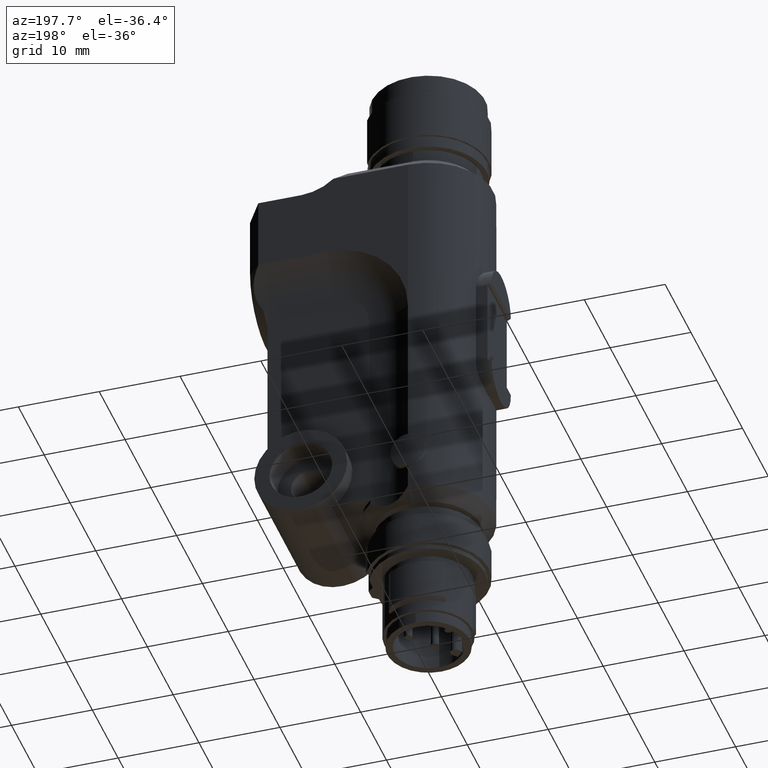
[diagram: clean part render]
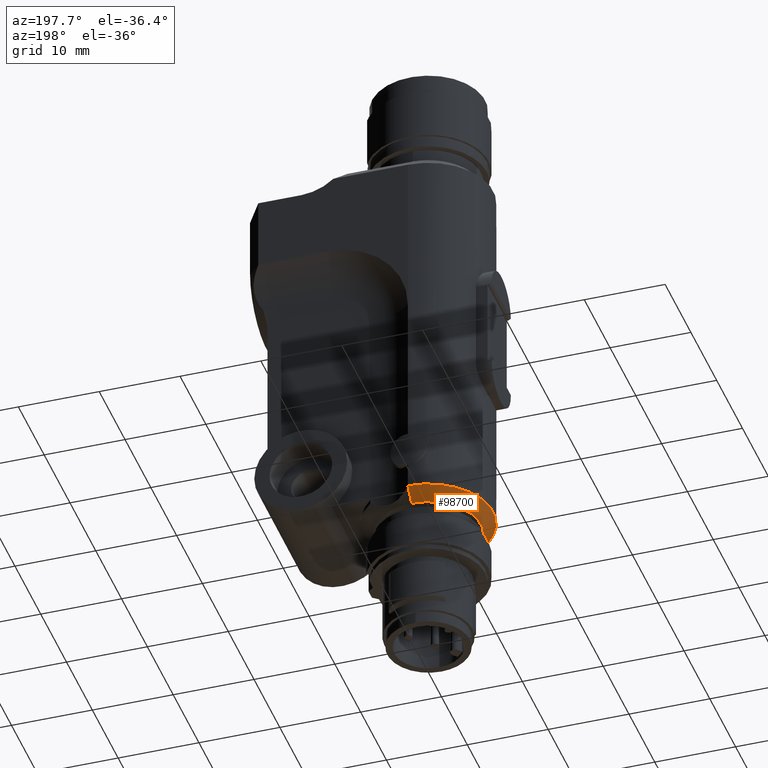
[diagram: same view with one face highlighted and labeled with its STEP entity id]
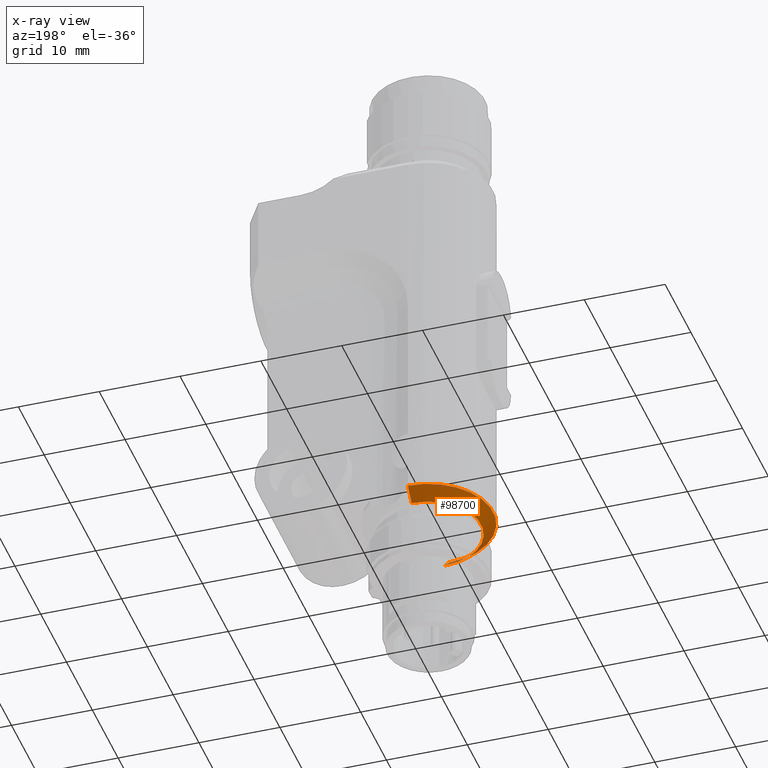
[diagram: x-ray of the same camera — body ghosted, the highlighted face saturated]
A machine part, auxiliary view. The second image highlights one B-rep face of the part: STEP entity #98700.
The next image is the same camera in x-ray: the body ghosted, the highlighted face saturated — about 3% of this face is hidden behind the body in this view.
In plain terms, the highlighted conical surface has half-angle 45 deg.
Its self-contained STEP definition (entity closure, byte-faithful):
#7100=CARTESIAN_POINT('',(8.,7.105427357601E-15,1.5));
#7110=VERTEX_POINT('',#7100);
#7140=CARTESIAN_POINT('',(7.61693287089118E-16,7.105427357601E-15,1.5));
#7150=DIRECTION('',(2.52970265222012E-16,6.19598451167187E-32,1.));
#7160=DIRECTION('',(1.,0.,-2.52970265222012E-16));
#7170=AXIS2_PLACEMENT_3D('',#7140,#7150,#7160);
#7180=CIRCLE('',#7170,8.);
#7190=CARTESIAN_POINT('',(-8.,8.08514479691888E-15,1.5));
#7200=VERTEX_POINT('',#7190);
#7210=EDGE_CURVE('',#7200,#7110,#7180,.T.);
#33750=CARTESIAN_POINT('',(3.822378892561E-16,7.105427357601E-15,
-5.0068352689673E-32));
#33760=DIRECTION('',(2.52970265222012E-16,6.19598451167187E-32,1.));
#33770=DIRECTION('',(1.,0.,-2.52970265222012E-16));
#33780=AXIS2_PLACEMENT_3D('',#33750,#33760,#33770);
#33790=CIRCLE('',#33780,6.5);
#33800=CARTESIAN_POINT('',(6.50000000000001,7.105427357601E-15,0.));
#33810=VERTEX_POINT('',#33800);
#33820=CARTESIAN_POINT('',(-6.50000000000001,7.90144777704678E-15,
1.55431223447522E-15));
#33830=VERTEX_POINT('',#33820);
#33860=EDGE_CURVE('',#33830,#33810,#33790,.T.);
#34130=CARTESIAN_POINT('',(-8.,8.08514479691888E-15,1.5));
#34140=DIRECTION('',(-0.707106781186547,8.65956056235493E-17,
0.707106781186548));
#34150=VECTOR('',#34140,11.3137084989848);
#34160=LINE('',#34130,#34150);
#34170=EDGE_CURVE('',#33830,#7200,#34160,.T.);
#34200=CARTESIAN_POINT('',(8.,7.105427357601E-15,1.5));
#34210=DIRECTION('',(0.707106781186547,0.,0.707106781186548));
#34220=VECTOR('',#34210,11.3137084989848);
#34230=LINE('',#34200,#34220);
#34240=EDGE_CURVE('',#33810,#7110,#34230,.T.);
#98590=CARTESIAN_POINT('',(7.61693287089118E-16,7.105427357601E-15,1.5))
;
#98600=DIRECTION('',(2.52970265222012E-16,0.,1.));
#98610=DIRECTION('',(1.,0.,-2.52970265222012E-16));
#98620=AXIS2_PLACEMENT_3D('',#98590,#98600,#98610);
#98630=CONICAL_SURFACE('',#98620,8.,0.785398163397448);
#98640=ORIENTED_EDGE('',*,*,#34170,.F.);
#98650=ORIENTED_EDGE('',*,*,#7210,.F.);
#98660=ORIENTED_EDGE('',*,*,#34240,.T.);
#98670=ORIENTED_EDGE('',*,*,#33860,.T.);
#98680=EDGE_LOOP('',(#98670,#98660,#98650,#98640));
#98690=FACE_OUTER_BOUND('',#98680,.T.);
#98700=ADVANCED_FACE('',(#98690),#98630,.T.);